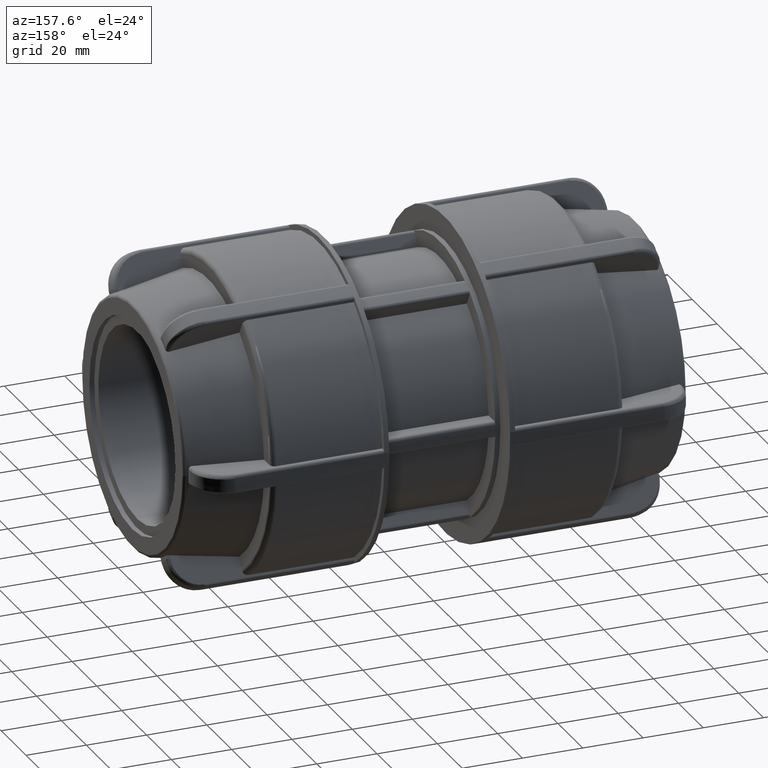
[diagram: clean part render]
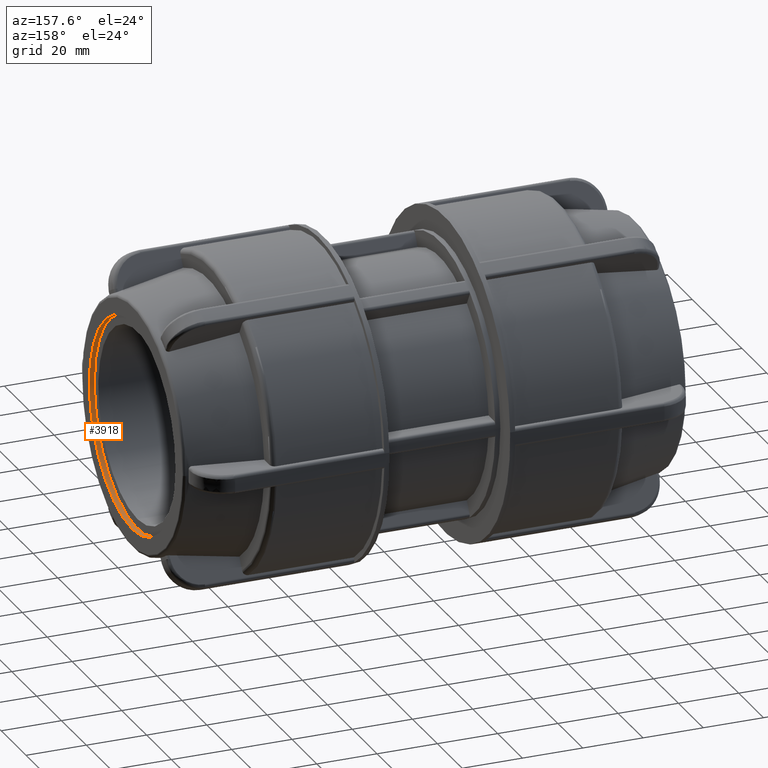
[diagram: same view with one face highlighted and labeled with its STEP entity id]
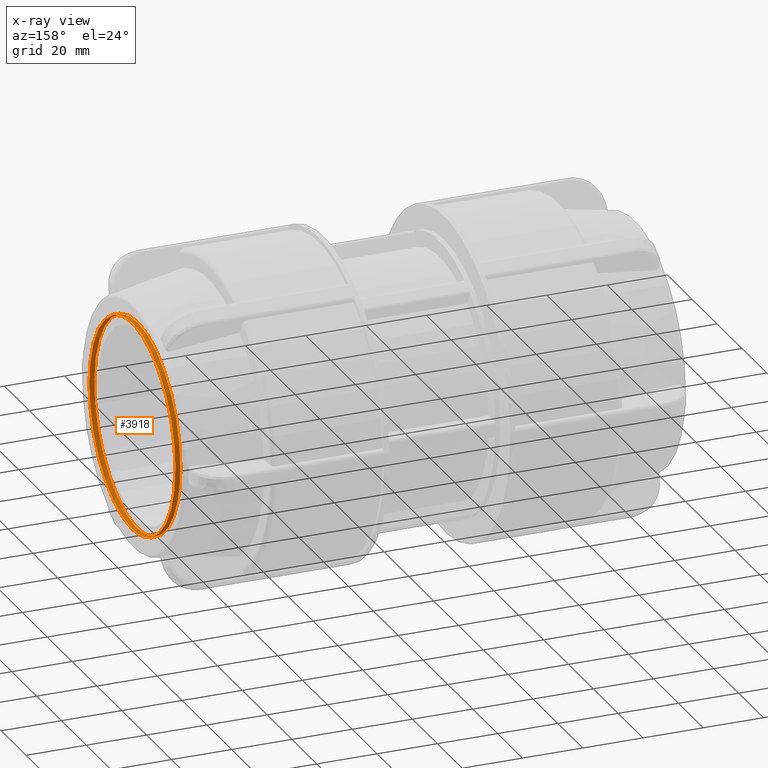
[diagram: x-ray of the same camera — body ghosted, the highlighted face saturated]
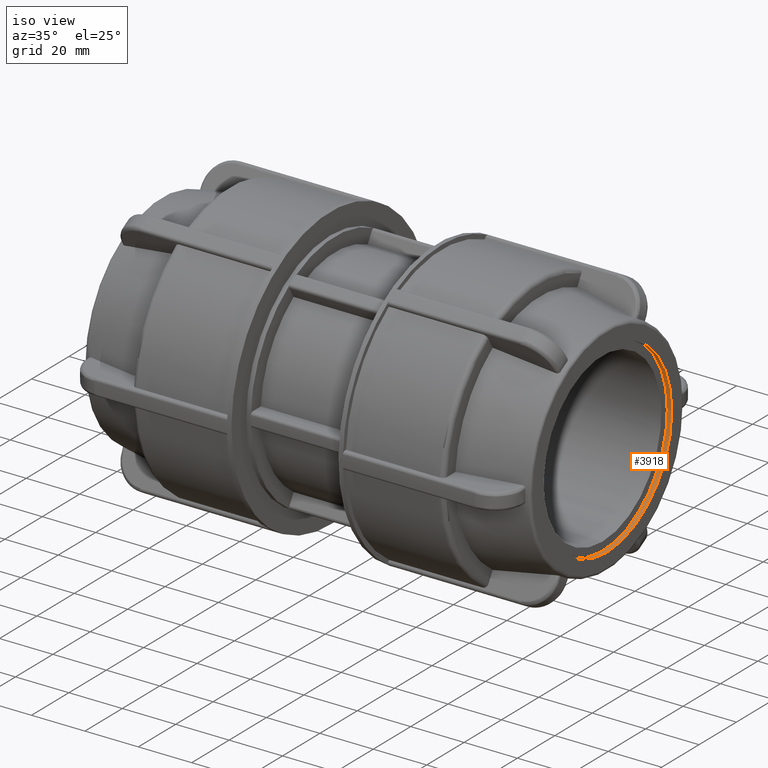
[diagram: same view with one face highlighted and labeled with its STEP entity id]
A machine part, auxiliary view. The second image highlights one B-rep face of the part: STEP entity #3918.
The next image is the same camera in x-ray: the body ghosted, the highlighted face saturated — about 0% of this face is hidden behind the body in this view.
A second angle (iso view) of the same face is appended — the face is thin or edge-on in the first view.
In plain terms, the highlighted cylindrical surface (bore or boss wall) has radius 34.65 mm, axis along (1, 0, 0).
Its self-contained STEP definition (entity closure, byte-faithful):
#212=FACE_BOUND('',#788,.T.);
#532=FACE_OUTER_BOUND('',#787,.T.);
#787=EDGE_LOOP('',(#3593));
#788=EDGE_LOOP('',(#3594));
#1445=CIRCLE('',#4288,34.65);
#1480=CIRCLE('',#4359,34.65);
#1835=VERTEX_POINT('',#7893);
#1858=VERTEX_POINT('',#8135);
#2383=EDGE_CURVE('',#1835,#1835,#1445,.T.);
#2440=EDGE_CURVE('',#1858,#1858,#1480,.T.);
#3593=ORIENTED_EDGE('',*,*,#2383,.F.);
#3594=ORIENTED_EDGE('',*,*,#2440,.T.);
#3689=CYLINDRICAL_SURFACE('',#4360,34.65);
#3918=ADVANCED_FACE('',(#532,#212),#3689,.F.);
#4288=AXIS2_PLACEMENT_3D('',#7894,#5311,#5312);
#4359=AXIS2_PLACEMENT_3D('',#8136,#5465,#5466);
#4360=AXIS2_PLACEMENT_3D('',#8137,#5467,#5468);
#5311=DIRECTION('center_axis',(1.,3.06161699786838E-16,0.));
#5312=DIRECTION('ref_axis',(0.,0.,-1.));
#5465=DIRECTION('center_axis',(1.,3.06161699786838E-16,0.));
#5466=DIRECTION('ref_axis',(0.,0.,-1.));
#5467=DIRECTION('center_axis',(1.,3.06161699786838E-16,0.));
#5468=DIRECTION('ref_axis',(-4.64848907677115E-16,1.,0.));
#7893=CARTESIAN_POINT('',(81.83,19.9812405833337,-28.3085238885912));
#7894=CARTESIAN_POINT('Origin',(81.83,2.5053211893557E-14,0.));
#8135=CARTESIAN_POINT('',(83.5,34.65,0.));
#8136=CARTESIAN_POINT('Origin',(83.5,2.5564501932201E-14,0.));
#8137=CARTESIAN_POINT('Origin',(82.665,2.5308856912879E-14,0.));